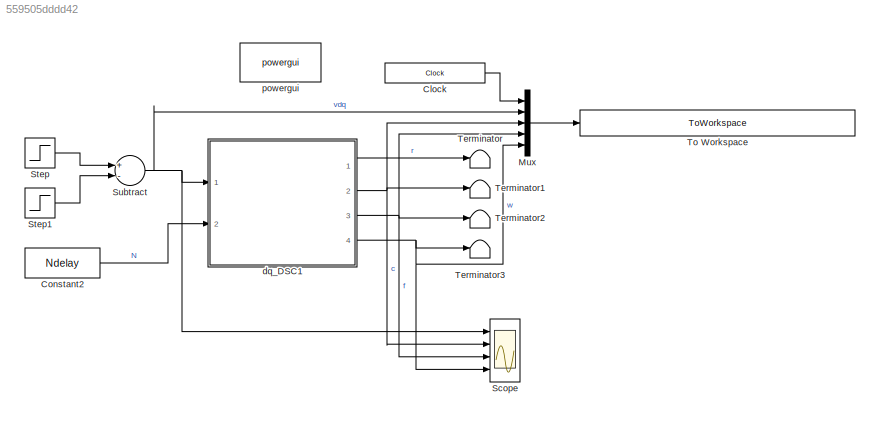
MODEL slx_559505dddd42
KIND model
CONFIG AbsTol = auto
CONFIG EnableMultiTasking = off
CONFIG FixedStep = Ts
CONFIG MaxStep = auto
CONFIG MinStep = auto
CONFIG RelTol = 1e-3
CONFIG SampleTimeConstraint = Unconstrained
CONFIG Solver = ode8
CONFIG SolverName = ode8
CONFIG StartTime = 0.0
CONFIG StopTime = Ttot
BLOCK [Clock] Clock
  Decimation = 1
  DisplayTime = on
BLOCK [Constant] Constant2
  Value = Ndelay
BLOCK [Mux] Mux
  DisplayOption = bar
  Inputs = 5
  Ports = [5, 1]
BLOCK [Scope] Scope
  Floating = off
  NumInputPorts = 4
  Ports = [4]
  ScopeSpecificationString = Simulink.scopes.TimeScopeBlockCfg('CurrentConfiguration', extmgr.ConfigurationSet(extmgr.Configuration('Core','General UI',true),extmgr.Configuration('Core','Source UI',true),extmgr.Configuration('Sources','WiredSimulink',true),extmgr.Configuration('Visuals','Time Domain',true,'SerializedDisplays',{struct('MinYLimReal','-0.125','MaxYLimReal','1.125','YLabelReal','','MinYLimMag','0.00000','MaxYLimM...<+1399ch>
BLOCK [Step] Step
  SampleTime = 0
  Time = 0
BLOCK [Step] Step1
  SampleTime = 0
  Time = Ts_control
BLOCK [Sum] Subtract
  InputSameDT = off
  Inputs = +-
  OutDataTypeStr = Inherit: Inherit via internal rule
  Ports = [2, 1]
  SaturateOnIntegerOverflow = off
BLOCK [Terminator] Terminator
BLOCK [Terminator] Terminator1
BLOCK [Terminator] Terminator2
BLOCK [Terminator] Terminator3
BLOCK [ToWorkspace] To Workspace
  FixptAsFi = on
  MaxDataPoints = inf
  Ports = [1]
  SampleTime = Ts_control
  Save2DSignal = 2-D array (concatenate along first dimension)
  VariableName = FreqAdaptiveFFT_Raw
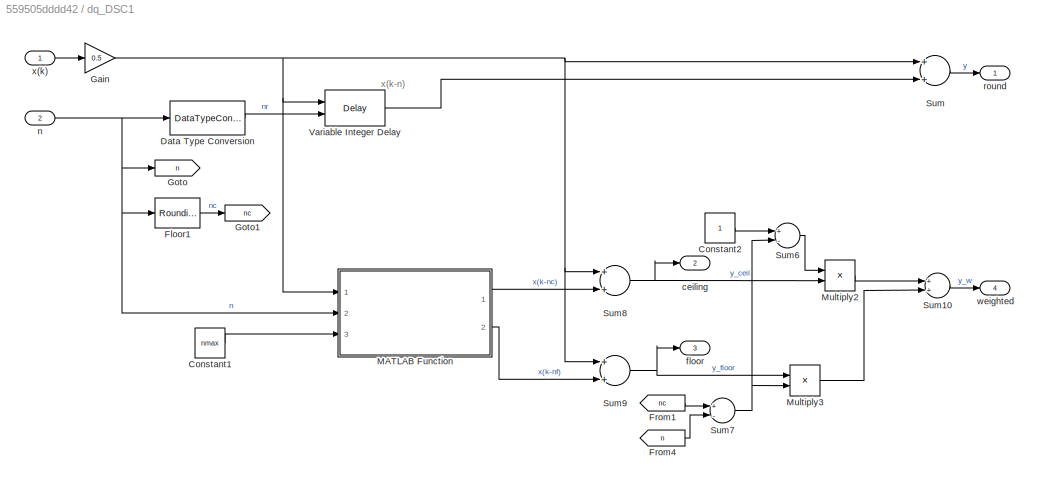
BLOCK [SubSystem] dq_DSC1
  Ports = [2, 4]
  RequestExecContextInheritance = off
  SystemSampleTime = Ts
  TreatAsAtomicUnit = on
BLOCK [Constant] dq_DSC1/Constant1
  Value = nmax
BLOCK [Constant] dq_DSC1/Constant2
BLOCK [DataTypeConversion] dq_DSC1/Data Type Conversion
  OutDataTypeStr = int16
  RndMeth = Round
BLOCK [Rounding] dq_DSC1/Floor1
  Operator = ceil
BLOCK [From] dq_DSC1/From1
  GotoTag = nc
BLOCK [From] dq_DSC1/From4
  GotoTag = n
BLOCK [Gain] dq_DSC1/Gain
  Gain = 0.5
  OutDataTypeStr = Inherit: Inherit via internal rule
  ParamDataTypeStr = Inherit: Inherit via internal rule
  SaturateOnIntegerOverflow = off
BLOCK [Goto] dq_DSC1/Goto
  GotoTag = n
BLOCK [Goto] dq_DSC1/Goto1
  GotoTag = nc
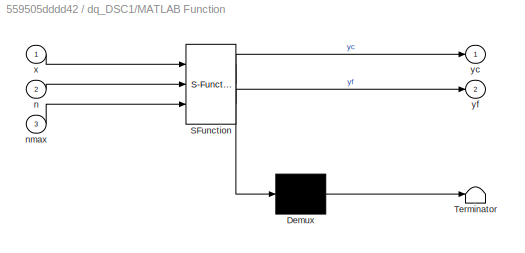
BLOCK [SubSystem] dq_DSC1/MATLAB Function
  ErrorFcn = Stateflow.Translate.translate
  PermitHierarchicalResolution = ExplicitOnly
  Ports = [3, 2]
  RequestExecContextInheritance = off
  SFBlockType = MATLAB Function
  SystemSampleTime = Ts_control
  TreatAsAtomicUnit = on
BLOCK [Demux] dq_DSC1/MATLAB Function/ Demux 
  Outputs = 1
  Ports = [1, 1]
BLOCK [S-Function] dq_DSC1/MATLAB Function/ SFunction 
  EnableBusSupport = on
  FunctionName = sf_sfun
  PortCounts = [3 3]
  Ports = [3, 3]
  SFcnIsStateOwnerBlock = off
  SFunctionDeploymentMode = off
  Tag = Stateflow S-Function FreqAdaptiveFFT 2
BLOCK [Terminator] dq_DSC1/MATLAB Function/ Terminator 
BLOCK [Inport] dq_DSC1/MATLAB Function/n
  IconDisplay = Port number
  Port = 2
BLOCK [Inport] dq_DSC1/MATLAB Function/nmax
  IconDisplay = Port number
  Port = 3
BLOCK [Inport] dq_DSC1/MATLAB Function/x
  IconDisplay = Port number
BLOCK [Outport] dq_DSC1/MATLAB Function/yc
  IconDisplay = Port number
BLOCK [Outport] dq_DSC1/MATLAB Function/yf
  IconDisplay = Port number
  Port = 2
BLOCK [Product] dq_DSC1/Multiply2
  InputSameDT = off
  OutDataTypeStr = Inherit: Inherit via internal rule
  Ports = [2, 1]
  RndMeth = Floor
  SaturateOnIntegerOverflow = off
BLOCK [Product] dq_DSC1/Multiply3
  InputSameDT = off
  OutDataTypeStr = Inherit: Inherit via internal rule
  Ports = [2, 1]
  RndMeth = Floor
  SaturateOnIntegerOverflow = off
BLOCK [Sum] dq_DSC1/Sum
  InputSameDT = off
  OutDataTypeStr = Inherit: Inherit via internal rule
  Ports = [2, 1]
  SaturateOnIntegerOverflow = off
BLOCK [Sum] dq_DSC1/Sum10
  InputSameDT = off
  OutDataTypeStr = Inherit: Inherit via internal rule
  Ports = [2, 1]
  SaturateOnIntegerOverflow = off
BLOCK [Sum] dq_DSC1/Sum6
  InputSameDT = off
  Inputs = +-
  OutDataTypeStr = Inherit: Inherit via internal rule
  Ports = [2, 1]
  SaturateOnIntegerOverflow = off
BLOCK [Sum] dq_DSC1/Sum7
  InputSameDT = off
  Inputs = +-
  OutDataTypeStr = Inherit: Inherit via internal rule
  Ports = [2, 1]
  SaturateOnIntegerOverflow = off
BLOCK [Sum] dq_DSC1/Sum8
  InputSameDT = off
  OutDataTypeStr = Inherit: Inherit via internal rule
  Ports = [2, 1]
  SaturateOnIntegerOverflow = off
BLOCK [Sum] dq_DSC1/Sum9
  InputSameDT = off
  OutDataTypeStr = Inherit: Inherit via internal rule
  Ports = [2, 1]
  SaturateOnIntegerOverflow = off
BLOCK [Delay] dq_DSC1/Variable Integer Delay
  DelayLength = 200
  DelayLengthSource = Input port
  DelayLengthUpperLimit = nmax
  InputPortMap = u0,p1
  Ports = [2, 1]
  SampleTime = Ts
BLOCK [Outport] dq_DSC1/ceiling
  IconDisplay = Port number
  Port = 2
BLOCK [Outport] dq_DSC1/floor
  IconDisplay = Port number
  Port = 3
BLOCK [Inport] dq_DSC1/n
  IconDisplay = Port number
  Port = 2
BLOCK [Outport] dq_DSC1/round
  IconDisplay = Port number
BLOCK [Outport] dq_DSC1/weighted
  IconDisplay = Port number
  Port = 4
BLOCK [Inport] dq_DSC1/x(k)
  IconDisplay = Port number
BLOCK [Reference] powergui  REF=powerlib/powergui
  Ports = []
  Priority = 1
  SourceBlock = powerlib/powergui
  SourceProductBaseCode = PS
  SourceProductName = Simscape Power Systems
  SourceType = PSB option menu block
ANNOTATION dq_DSC1: x(k-n)
LINE Clock:1 -> Mux:1
LINE Constant2:1 -> dq_DSC1:2
LINE Mux:1 -> To Workspace:1
LINE Step1:1 -> Subtract:2
LINE Step:1 -> Subtract:1
NET Subtract:1 -> Mux:2, Scope:1, dq_DSC1:1
LINE dq_DSC1/Constant1:1 -> dq_DSC1/MATLAB Function:3
LINE dq_DSC1/Constant2:1 -> dq_DSC1/Sum6:1
LINE dq_DSC1/Data Type Conversion:1 -> dq_DSC1/Variable Integer Delay:2
LINE dq_DSC1/Floor1:1 -> dq_DSC1/Goto1:1
LINE dq_DSC1/From1:1 -> dq_DSC1/Sum7:1
LINE dq_DSC1/From4:1 -> dq_DSC1/Sum7:2
NET dq_DSC1/Gain:1 -> dq_DSC1/MATLAB Function:1, dq_DSC1/Sum8:1, dq_DSC1/Sum9:1, dq_DSC1/Sum:1, dq_DSC1/Variable Integer Delay:1
LINE dq_DSC1/MATLAB Function:1 -> dq_DSC1/Sum8:2
LINE dq_DSC1/MATLAB Function:2 -> dq_DSC1/Sum9:2
LINE dq_DSC1/Multiply2:1 -> dq_DSC1/Sum10:1
LINE dq_DSC1/Multiply3:1 -> dq_DSC1/Sum10:2
LINE dq_DSC1/Sum10:1 -> dq_DSC1/weighted:1
LINE dq_DSC1/Sum6:1 -> dq_DSC1/Multiply2:1
NET dq_DSC1/Sum7:1 -> dq_DSC1/Multiply3:2, dq_DSC1/Sum6:2
NET dq_DSC1/Sum8:1 -> dq_DSC1/Multiply2:2, dq_DSC1/ceiling:1
NET dq_DSC1/Sum9:1 -> dq_DSC1/Multiply3:1, dq_DSC1/floor:1
LINE dq_DSC1/Sum:1 -> dq_DSC1/round:1
LINE dq_DSC1/Variable Integer Delay:1 -> dq_DSC1/Sum:2
NET dq_DSC1/n:1 -> dq_DSC1/Data Type Conversion:1, dq_DSC1/Floor1:1, dq_DSC1/Goto:1, dq_DSC1/MATLAB Function:2
LINE dq_DSC1/x(k):1 -> dq_DSC1/Gain:1
LINE dq_DSC1:1 -> Terminator:1
NET dq_DSC1:2 -> Mux:3, Scope:2, Terminator1:1
NET dq_DSC1:3 -> Mux:4, Scope:3, Terminator2:1
NET dq_DSC1:4 -> Mux:5, Scope:4, Terminator3:1
note: NET lines group one-source signal fan-out (src -> all destinations, sorted); 1:1 wires keep LINE
CHART dq_DSC1/MATLAB Function states=1 transitions=1
  STATE_LABEL 'eML_blk_kernel()'
  STATE_LABEL 'SCRIPT:\nfunction [yc,    yf]  = CircBuff_Delay_CeilFloor(x, n, nmax)\n%% %%%%%%%%%%%%%%%%%%%%%%%%%%%%%%%%%%%%%%%%%%%%%%%%%%%%%%%%%%%%%%%%%%%%%%%%\n% Circular Buffer \n% By: Mota\n% Revision history:\n%       2021-07-16: first release\n%\n%%Interface  \n%   Inputs\n%       x : scalar\n%       n : delay in samples (float, ideal delay is time was continuous)\n%       nmax : max size of circular buffer, ONLY use...<+2650ch>'
